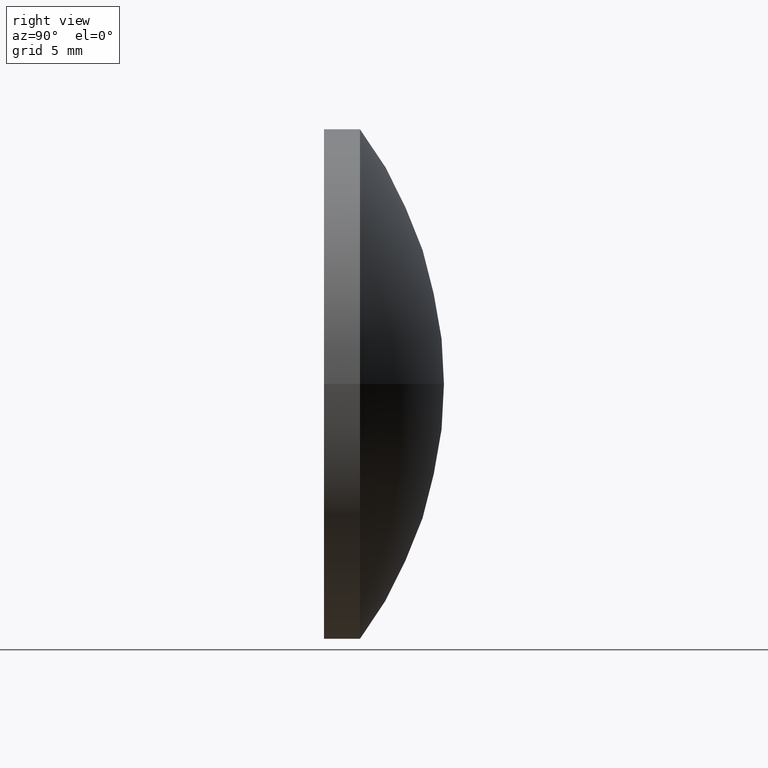
[diagram: clean part render]
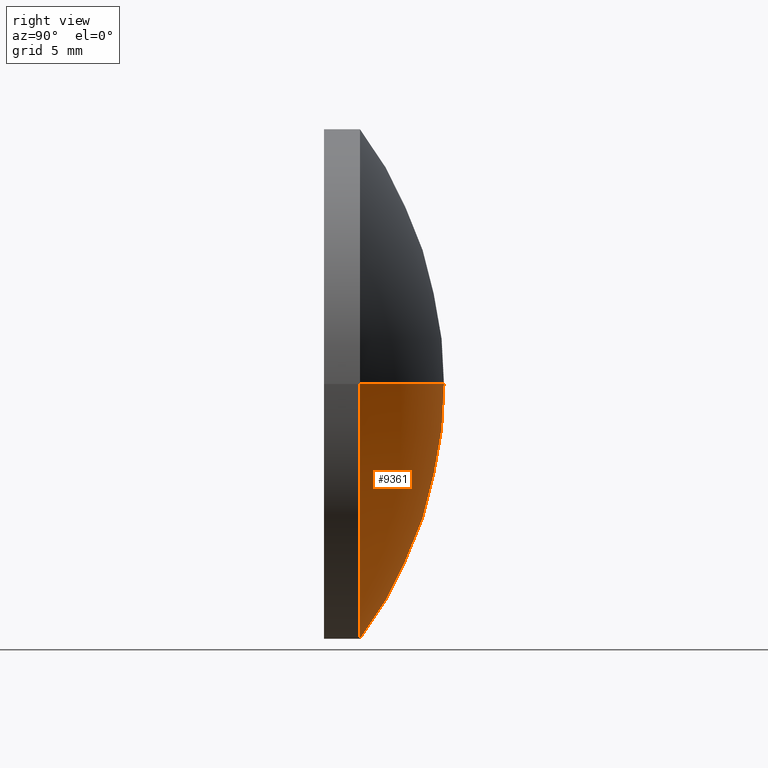
[diagram: same view with one face highlighted and labeled with its STEP entity id]
A machine part, right view. The second image highlights one B-rep face of the part: STEP entity #9361.
In plain terms, the highlighted spherical surface has radius 17.9532 mm.
Its self-contained STEP definition (entity closure, byte-faithful):
#93 = CARTESIAN_POINT ( 'NONE',  ( 7.009463474431768000E-015, -12.95321428571427600, 0.0000000000000000000 ) ) ;
#304 = CARTESIAN_POINT ( 'NONE',  ( 9.200371398447589900E-014, 4.999999999999997300, 0.0000000000000000000 ) ) ;
#355 = DIRECTION ( 'NONE',  ( -1.000000000000000000, 0.0000000000000000000, 0.0000000000000000000 ) ) ;
#1534 = VERTEX_POINT ( 'NONE', #8426 ) ;
#1731 = ORIENTED_EDGE ( 'NONE', *, *, #11725, .T. ) ;
#2002 = DIRECTION ( 'NONE',  ( -4.672975649621174500E-015, -1.000000000000000000, -0.0000000000000000000 ) ) ;
#2082 = DIRECTION ( 'NONE',  ( 0.0000000000000000000, 0.0000000000000000000, -1.000000000000000000 ) ) ;
#2582 = ORIENTED_EDGE ( 'NONE', *, *, #7672, .F. ) ;
#2927 = DIRECTION ( 'NONE',  ( 1.224646799147353200E-016, -5.722744671802094500E-031, 1.000000000000000000 ) ) ;
#3110 = AXIS2_PLACEMENT_3D ( 'NONE', #8409, #2002, #10347 ) ;
#3440 = CARTESIAN_POINT ( 'NONE',  ( -10.65000000000002000, 1.500000000000095900, 1.304248841091932800E-015 ) ) ;
#4233 = VERTEX_POINT ( 'NONE', #3440 ) ;
#4796 = CARTESIAN_POINT ( 'NONE',  ( 7.009463474431768000E-015, -12.95321428571427600, 0.0000000000000000000 ) ) ;
#5108 = AXIS2_PLACEMENT_3D ( 'NONE', #5692, #8463, #6646 ) ;
#5293 = ORIENTED_EDGE ( 'NONE', *, *, #7871, .F. ) ;
#5568 = CIRCLE ( 'NONE', #3110, 10.65000000000001100 ) ;
#5692 = CARTESIAN_POINT ( 'NONE',  ( 7.009463474431768000E-015, -12.95321428571427600, 0.0000000000000000000 ) ) ;
#6646 = DIRECTION ( 'NONE',  ( 1.000000000000000000, -4.637984347635382000E-015, 0.0000000000000000000 ) ) ;
#6698 = SPHERICAL_SURFACE ( 'NONE', #5108, 17.95321428571427400 ) ;
#6729 = VERTEX_POINT ( 'NONE', #304 ) ;
#7406 = AXIS2_PLACEMENT_3D ( 'NONE', #4796, #2082, #355 ) ;
#7672 = EDGE_CURVE ( 'NONE', #6729, #4233, #9708, .T. ) ;
#7871 = EDGE_CURVE ( 'NONE', #4233, #1534, #5568, .T. ) ;
#8409 = CARTESIAN_POINT ( 'NONE',  ( -9.345951299242115400E-015, 1.500000000000046000, 0.0000000000000000000 ) ) ;
#8426 = CARTESIAN_POINT ( 'NONE',  ( 10.65000000000000400, 1.499999999999996200, 0.0000000000000000000 ) ) ;
#8448 = CIRCLE ( 'NONE', #7406, 17.95321428571427400 ) ;
#8463 = DIRECTION ( 'NONE',  ( -0.0000000000000000000, 0.0000000000000000000, 1.000000000000000000 ) ) ;
#8466 = DIRECTION ( 'NONE',  ( 1.000000000000000000, 0.0000000000000000000, -1.224646799147353000E-016 ) ) ;
#8791 = EDGE_LOOP ( 'NONE', ( #2582, #1731, #5293 ) ) ;
#9361 = ADVANCED_FACE ( 'NONE', ( #9379 ), #6698, .T. ) ;
#9379 = FACE_OUTER_BOUND ( 'NONE', #8791, .T. ) ;
#9708 = CIRCLE ( 'NONE', #10755, 17.95321428571427400 ) ;
#10347 = DIRECTION ( 'NONE',  ( 1.000000000000000000, -4.682938960970248900E-015, 0.0000000000000000000 ) ) ;
#10755 = AXIS2_PLACEMENT_3D ( 'NONE', #93, #2927, #8466 ) ;
#11725 = EDGE_CURVE ( 'NONE', #6729, #1534, #8448, .T. ) ;